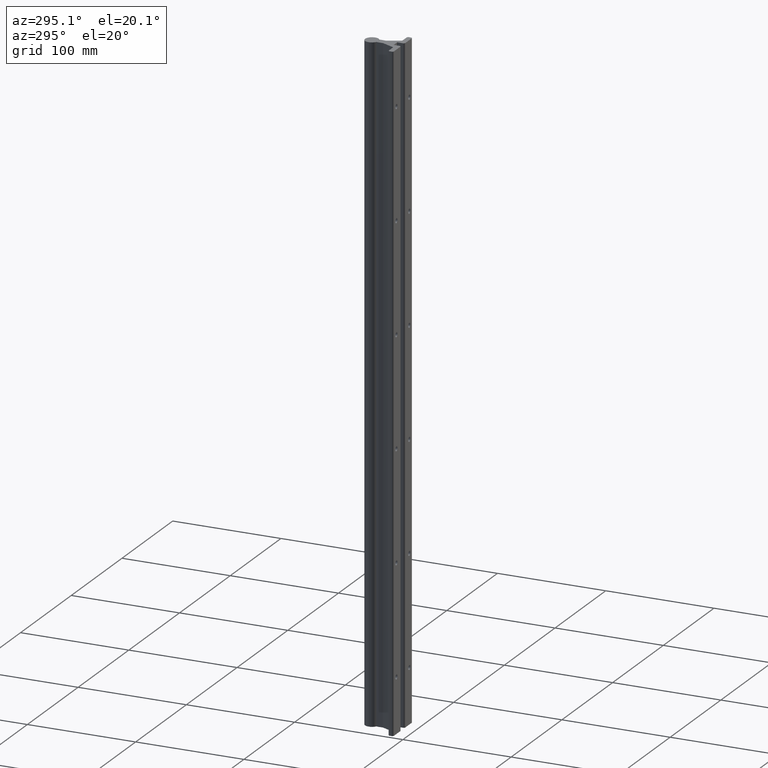
[diagram: clean part render]
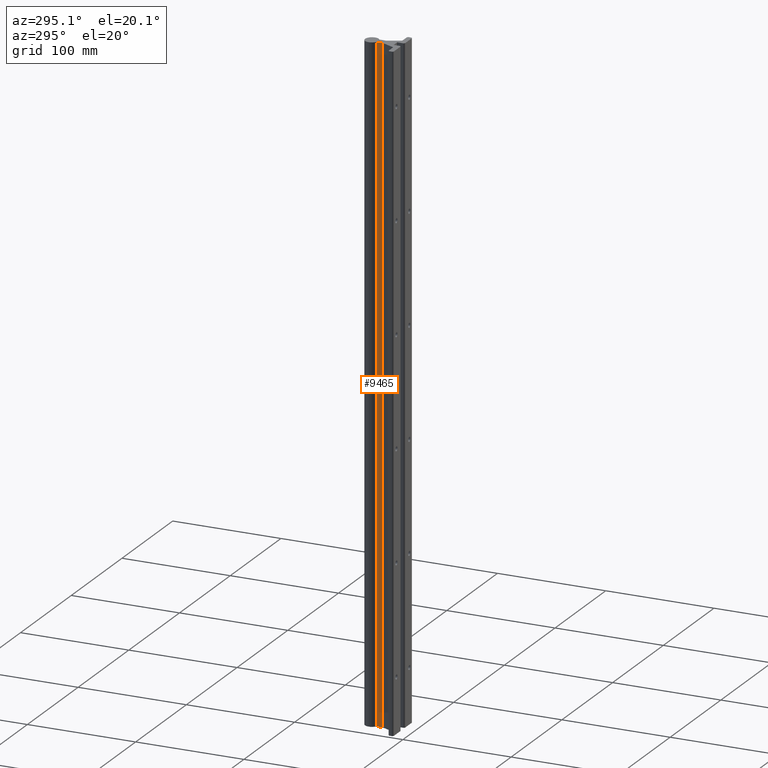
[diagram: same view with one face highlighted and labeled with its STEP entity id]
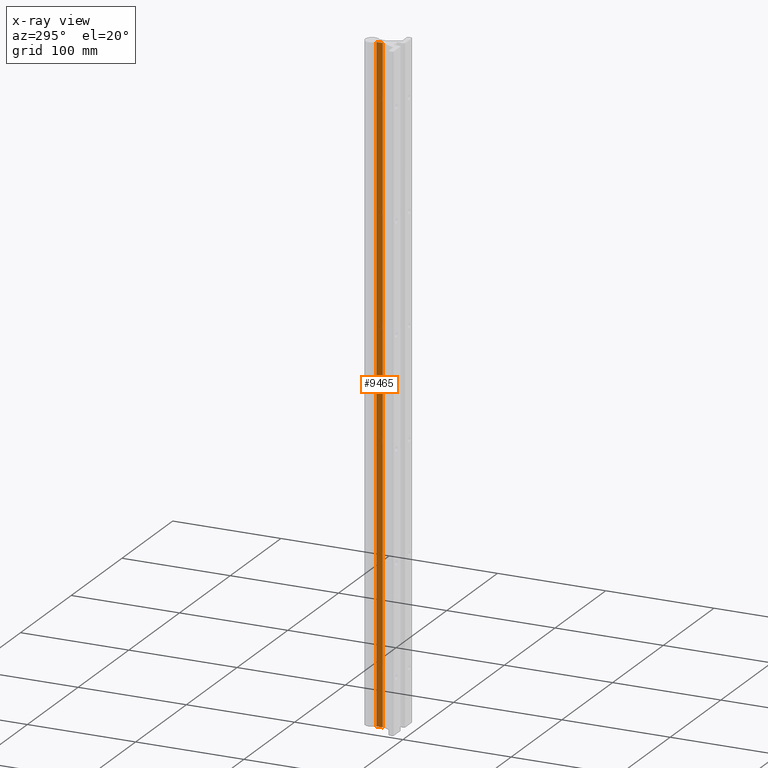
[diagram: x-ray of the same camera — body ghosted, the highlighted face saturated]
A machine part, auxiliary view. The second image highlights one B-rep face of the part: STEP entity #9465.
The next image is the same camera in x-ray: the body ghosted, the highlighted face saturated — about 0% of this face is hidden behind the body in this view.
In plain terms, the highlighted planar face has unit normal (-1, 0, 0).
Its self-contained STEP definition (entity closure, byte-faithful):
#723 = FACE_OUTER_BOUND ( 'NONE', #10821, .T. ) ;
#975 = VERTEX_POINT ( 'NONE', #4519 ) ;
#1284 = DIRECTION ( 'NONE',  ( 0.000000000000000000, 0.000000000000000000, 1.000000000000000000 ) ) ;
#1311 = LINE ( 'NONE', #6572, #5736 ) ;
#1338 = EDGE_CURVE ( 'NONE', #4971, #975, #1311, .T. ) ;
#2798 = CARTESIAN_POINT ( 'NONE',  ( -0.1299999999999975342, 0.9062716873605728418, -24.00000000000000355 ) ) ;
#3455 = ORIENTED_EDGE ( 'NONE', *, *, #6273, .F. ) ;
#3508 = CARTESIAN_POINT ( 'NONE',  ( -0.1299999999999975620, 0.9062716873605729528, 0.000000000000000000 ) ) ;
#3814 = LINE ( 'NONE', #2798, #7434 ) ;
#4158 = VECTOR ( 'NONE', #12585, 39.37007874015748143 ) ;
#4519 = CARTESIAN_POINT ( 'NONE',  ( -0.1299999999999990330, 0.6731474388999991731, 0.000000000000000000 ) ) ;
#4706 = DIRECTION ( 'NONE',  ( -6.445131325622064578E-15, -1.000000000000000000, 0.000000000000000000 ) ) ;
#4844 = DIRECTION ( 'NONE',  ( -1.000000000000000000, 6.445131325622064578E-15, 0.000000000000000000 ) ) ;
#4971 = VERTEX_POINT ( 'NONE', #8383 ) ;
#5163 = LINE ( 'NONE', #9375, #9833 ) ;
#5329 = LINE ( 'NONE', #12708, #4158 ) ;
#5736 = VECTOR ( 'NONE', #12044, 39.37007874015748143 ) ;
#6273 = EDGE_CURVE ( 'NONE', #12244, #975, #5329, .T. ) ;
#6572 = CARTESIAN_POINT ( 'NONE',  ( -0.1299999999999990330, 0.6731474388999991731, -25.75252057657289129 ) ) ;
#7206 = EDGE_CURVE ( 'NONE', #4971, #10861, #3814, .T. ) ;
#7434 = VECTOR ( 'NONE', #8014, 39.37007874015748143 ) ;
#8014 = DIRECTION ( 'NONE',  ( 6.445131325622064578E-15, 1.000000000000000000, -0.000000000000000000 ) ) ;
#8023 = CARTESIAN_POINT ( 'NONE',  ( -0.1299999999999975342, 0.9062716873605728418, -24.00000000000000355 ) ) ;
#8383 = CARTESIAN_POINT ( 'NONE',  ( -0.1299999999999990330, 0.6731474388999990621, -24.00000000000000355 ) ) ;
#8831 = ORIENTED_EDGE ( 'NONE', *, *, #1338, .T. ) ;
#9023 = ORIENTED_EDGE ( 'NONE', *, *, #7206, .F. ) ;
#9054 = ORIENTED_EDGE ( 'NONE', *, *, #12839, .F. ) ;
#9375 = CARTESIAN_POINT ( 'NONE',  ( -0.1299999999999975342, 0.9062716873605728418, -25.75252057657289129 ) ) ;
#9465 = ADVANCED_FACE ( 'NONE', ( #723 ), #9907, .T. ) ;
#9833 = VECTOR ( 'NONE', #1284, 39.37007874015748143 ) ;
#9907 = PLANE ( 'NONE',  #11213 ) ;
#10821 = EDGE_LOOP ( 'NONE', ( #9023, #8831, #3455, #9054 ) ) ;
#10861 = VERTEX_POINT ( 'NONE', #8023 ) ;
#11213 = AXIS2_PLACEMENT_3D ( 'NONE', #11841, #4844, #4706 ) ;
#11841 = CARTESIAN_POINT ( 'NONE',  ( -0.1299999999999975342, 0.9062716873605728418, -25.75252057657289129 ) ) ;
#12044 = DIRECTION ( 'NONE',  ( 0.000000000000000000, 0.000000000000000000, 1.000000000000000000 ) ) ;
#12244 = VERTEX_POINT ( 'NONE', #3508 ) ;
#12585 = DIRECTION ( 'NONE',  ( -6.445131325622064578E-15, -1.000000000000000000, 0.000000000000000000 ) ) ;
#12708 = CARTESIAN_POINT ( 'NONE',  ( -0.1299999999999975342, 0.9062716873605728418, 0.000000000000000000 ) ) ;
#12839 = EDGE_CURVE ( 'NONE', #10861, #12244, #5163, .T. ) ;